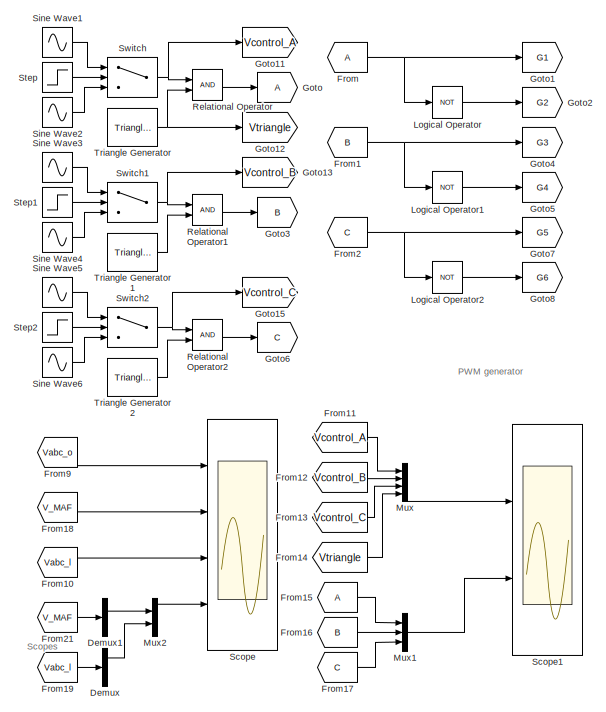
[diagram: root canvas - part 1/2, right side, full height]
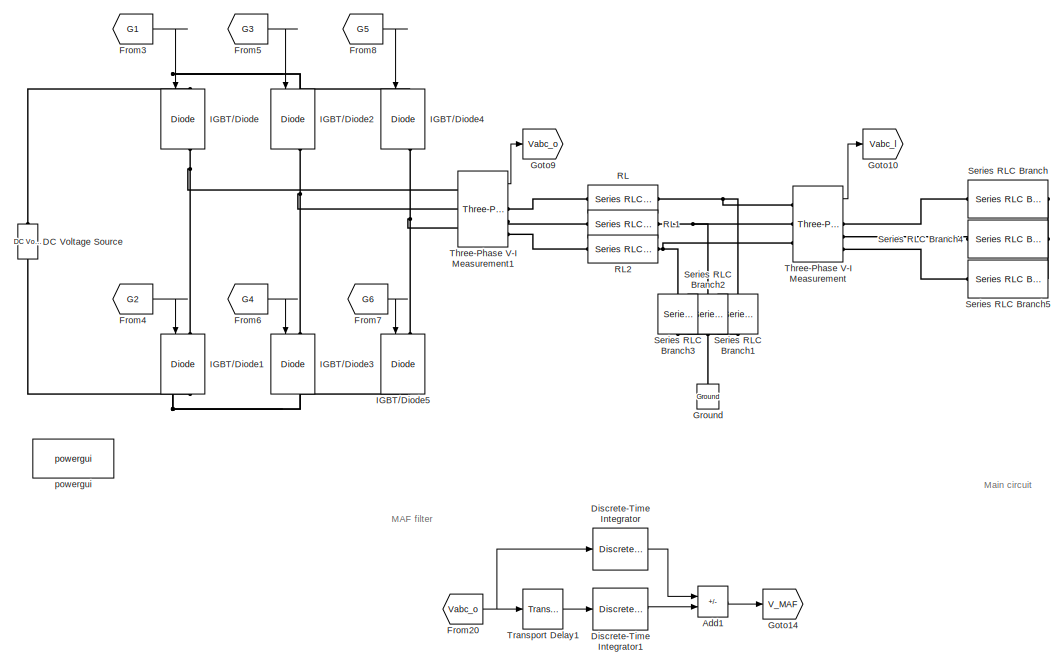
[diagram: root canvas - part 2/2, left side, full height]
MODEL slx_7b31f7d3c5cb
KIND model
CONFIG AbsTol = auto
CONFIG EnableMultiTasking = off
CONFIG FixedStep = Ts
CONFIG InitFcn = Ts = 5e-6;\nn = 2;\nTw = (n*pi)/(2*pi*60*33);
CONFIG MaxStep = auto
CONFIG MinStep = auto
CONFIG RelTol = 1e-3
CONFIG SampleTimeConstraint = Unconstrained
CONFIG SolverName = ode3
CONFIG StartTime = 0.0
CONFIG StopTime = 0.1
BLOCK [Sum] Add1
  IconShape = rectangular
  Inputs = +-
  Ports = [2, 1]
BLOCK [Reference] DC Voltage Source  REF=spsDCVoltageSourceLib/DC Voltage Source
  NameLocation = right
  Ports = [0, 0, 0, 0, 0, 1, 1]
  SourceBlock = spsDCVoltageSourceLib/DC Voltage Source
  SourceProductBaseCode = PS
  SourceType = DC Voltage Source
BLOCK [Demux] Demux
  Outputs = 3
  Ports = [1, 3]
BLOCK [Demux] Demux1
  Outputs = 3
  Ports = [1, 3]
BLOCK [DiscreteIntegrator] Discrete-Time Integrator
  ICPrevOutput = DiscIntNeverNeededParam
  ICPrevScaledInput = DiscIntNeverNeededParam
  InitialConditionSetting = Auto
  Ports = [1, 1]
  SampleTime = Ts
  gainval = 1/Tw
BLOCK [DiscreteIntegrator] Discrete-Time Integrator1
  ICPrevOutput = DiscIntNeverNeededParam
  ICPrevScaledInput = DiscIntNeverNeededParam
  InitialConditionSetting = Auto
  Ports = [1, 1]
  SampleTime = Ts
  gainval = 1/Tw
BLOCK [From] From
  TagVisibility = global
BLOCK [From] From1
  GotoTag = B
  TagVisibility = global
BLOCK [From] From10
  GotoTag = Vabc_l
  TagVisibility = global
BLOCK [From] From11
  GotoTag = Vcontrol_A
  TagVisibility = global
BLOCK [From] From12
  GotoTag = Vcontrol_B
  TagVisibility = global
BLOCK [From] From13
  GotoTag = Vcontrol_C
  TagVisibility = global
BLOCK [From] From14
  GotoTag = Vtriangle
  TagVisibility = global
BLOCK [From] From15
  TagVisibility = global
BLOCK [From] From16
  GotoTag = B
  TagVisibility = global
BLOCK [From] From17
  GotoTag = C
  TagVisibility = global
BLOCK [From] From18
  GotoTag = V_MAF
  TagVisibility = global
BLOCK [From] From19
  GotoTag = Vabc_l
  TagVisibility = global
BLOCK [From] From2
  GotoTag = C
  TagVisibility = global
BLOCK [From] From20
  GotoTag = Vabc_o
  TagVisibility = global
BLOCK [From] From21
  GotoTag = V_MAF
  TagVisibility = global
BLOCK [From] From3
  GotoTag = G1
  TagVisibility = global
BLOCK [From] From4
  GotoTag = G2
  TagVisibility = global
BLOCK [From] From5
  GotoTag = G3
  TagVisibility = global
BLOCK [From] From6
  GotoTag = G4
  TagVisibility = global
BLOCK [From] From7
  GotoTag = G6
  TagVisibility = global
BLOCK [From] From8
  GotoTag = G5
  TagVisibility = global
BLOCK [From] From9
  GotoTag = Vabc_o
  TagVisibility = global
BLOCK [Goto] Goto
  TagVisibility = global
BLOCK [Goto] Goto1
  GotoTag = G1
  TagVisibility = global
BLOCK [Goto] Goto10
  GotoTag = Vabc_l
  TagVisibility = global
BLOCK [Goto] Goto11
  GotoTag = Vcontrol_A
  TagVisibility = global
BLOCK [Goto] Goto12
  GotoTag = Vtriangle
  TagVisibility = global
BLOCK [Goto] Goto13
  GotoTag = Vcontrol_B
  TagVisibility = global
BLOCK [Goto] Goto14
  GotoTag = V_MAF
  TagVisibility = global
BLOCK [Goto] Goto15
  GotoTag = Vcontrol_C
  TagVisibility = global
BLOCK [Goto] Goto2
  GotoTag = G2
  TagVisibility = global
BLOCK [Goto] Goto3
  GotoTag = B
  TagVisibility = global
BLOCK [Goto] Goto4
  GotoTag = G3
  TagVisibility = global
BLOCK [Goto] Goto5
  GotoTag = G4
  TagVisibility = global
BLOCK [Goto] Goto6
  GotoTag = C
  TagVisibility = global
BLOCK [Goto] Goto7
  GotoTag = G5
  TagVisibility = global
BLOCK [Goto] Goto8
  GotoTag = G6
  TagVisibility = global
BLOCK [Goto] Goto9
  GotoTag = Vabc_o
  TagVisibility = global
BLOCK [Reference] Ground  REF=spsGroundLib/Ground
  NameLocation = right
  Ports = [0, 0, 0, 0, 0, 1]
  SourceBlock = spsGroundLib/Ground
  SourceProductBaseCode = PS
  SourceType = Ground
BLOCK [Reference] IGBT//Diode  REF=spsIGBTDiodeLib/IGBT//Diode
  NameLocation = left
  Ports = [1, 1, 0, 0, 0, 1, 1]
  SourceBlock = spsIGBTDiodeLib/IGBT//Diode
  SourceProductBaseCode = PS
  SourceType = IGBT/Diode
BLOCK [Reference] IGBT//Diode1  REF=spsIGBTDiodeLib/IGBT//Diode
  NameLocation = left
  Ports = [1, 1, 0, 0, 0, 1, 1]
  SourceBlock = spsIGBTDiodeLib/IGBT//Diode
  SourceProductBaseCode = PS
  SourceType = IGBT/Diode
BLOCK [Reference] IGBT//Diode2  REF=spsIGBTDiodeLib/IGBT//Diode
  NameLocation = left
  Ports = [1, 1, 0, 0, 0, 1, 1]
  SourceBlock = spsIGBTDiodeLib/IGBT//Diode
  SourceProductBaseCode = PS
  SourceType = IGBT/Diode
BLOCK [Reference] IGBT//Diode3  REF=spsIGBTDiodeLib/IGBT//Diode
  NameLocation = left
  Ports = [1, 1, 0, 0, 0, 1, 1]
  SourceBlock = spsIGBTDiodeLib/IGBT//Diode
  SourceProductBaseCode = PS
  SourceType = IGBT/Diode
BLOCK [Reference] IGBT//Diode4  REF=spsIGBTDiodeLib/IGBT//Diode
  NameLocation = left
  Ports = [1, 1, 0, 0, 0, 1, 1]
  SourceBlock = spsIGBTDiodeLib/IGBT//Diode
  SourceProductBaseCode = PS
  SourceType = IGBT/Diode
BLOCK [Reference] IGBT//Diode5  REF=spsIGBTDiodeLib/IGBT//Diode
  NameLocation = left
  Ports = [1, 1, 0, 0, 0, 1, 1]
  SourceBlock = spsIGBTDiodeLib/IGBT//Diode
  SourceProductBaseCode = PS
  SourceType = IGBT/Diode
BLOCK [Logic] Logical Operator
  AllPortsSameDT = off
  Operator = NOT
  OutDataTypeStr = boolean
  Ports = [1, 1]
BLOCK [Logic] Logical Operator1
  AllPortsSameDT = off
  Operator = NOT
  OutDataTypeStr = boolean
  Ports = [1, 1]
BLOCK [Logic] Logical Operator2
  AllPortsSameDT = off
  Operator = NOT
  OutDataTypeStr = boolean
  Ports = [1, 1]
BLOCK [Mux] Mux
  DisplayOption = bar
  Ports = [4, 1]
BLOCK [Mux] Mux1
  DisplayOption = bar
  Inputs = 3
  Ports = [3, 1]
BLOCK [Mux] Mux2
  DisplayOption = bar
  Inputs = 2
  Ports = [2, 1]
BLOCK [Reference] RL  REF=spsSeriesRLCBranchLib/Series RLC Branch
  Ports = [0, 0, 0, 0, 0, 1, 1]
  SourceBlock = spsSeriesRLCBranchLib/Series RLC Branch
  SourceProductBaseCode = PS
  SourceType = Series RLC Branch
BLOCK [Reference] RL1  REF=spsSeriesRLCBranchLib/Series RLC Branch
  Ports = [0, 0, 0, 0, 0, 1, 1]
  SourceBlock = spsSeriesRLCBranchLib/Series RLC Branch
  SourceProductBaseCode = PS
  SourceType = Series RLC Branch
BLOCK [Reference] RL2  REF=spsSeriesRLCBranchLib/Series RLC Branch
  Ports = [0, 0, 0, 0, 0, 1, 1]
  SourceBlock = spsSeriesRLCBranchLib/Series RLC Branch
  SourceProductBaseCode = PS
  SourceType = Series RLC Branch
BLOCK [RelationalOperator] Relational Operator
  InputSameDT = off
  OutDataTypeStr = boolean
  Ports = [2, 1]
BLOCK [RelationalOperator] Relational Operator1
  InputSameDT = off
  OutDataTypeStr = boolean
  Ports = [2, 1]
BLOCK [RelationalOperator] Relational Operator2
  InputSameDT = off
  OutDataTypeStr = boolean
  Ports = [2, 1]
BLOCK [Scope] Scope
  Floating = off
  NumInputPorts = 4
  Ports = [4]
  ScopeSpecificationString = Simulink.scopes.TimeScopeBlockCfg('CurrentConfiguration', extmgr.ConfigurationSet(extmgr.Configuration('Core','General UI',true),extmgr.Configuration('Core','Source UI',true),extmgr.Configuration('Sources','WiredSimulink',true,'DataLogging',true,'DataLoggingSaveFormat','StructureWithTime','DataLoggingVariableName','Vo_abc'),extmgr.Configuration('Visuals','Time Domain',true,'SerializedDisplays',{st...<+4908ch>
BLOCK [Scope] Scope1
  Floating = off
  NumInputPorts = 2
  Ports = [2]
  ScopeSpecificationString = Simulink.scopes.TimeScopeBlockCfg('CurrentConfiguration', extmgr.ConfigurationSet(extmgr.Configuration('Core','General UI',true),extmgr.Configuration('Core','Source UI',true),extmgr.Configuration('Sources','WiredSimulink',true,'DataLoggingVariableName','ScopeData1'),extmgr.Configuration('Visuals','Time Domain',true,'SerializedDisplays',{struct('MinYLimReal','-1.25','MaxYLimReal','1.25','YLabelReal...<+2924ch>
BLOCK [Reference] Series RLC Branch  REF=spsSeriesRLCBranchLib/Series RLC Branch
  Ports = [0, 0, 0, 0, 0, 1, 1]
  SourceBlock = spsSeriesRLCBranchLib/Series RLC Branch
  SourceProductBaseCode = PS
  SourceType = Series RLC Branch
BLOCK [Reference] Series RLC Branch1  REF=spsSeriesRLCBranchLib/Series RLC Branch
  NameLocation = left
  Ports = [0, 0, 0, 0, 0, 1, 1]
  SourceBlock = spsSeriesRLCBranchLib/Series RLC Branch
  SourceProductBaseCode = PS
  SourceType = Series RLC Branch
BLOCK [Reference] Series RLC Branch2  REF=spsSeriesRLCBranchLib/Series RLC Branch
  NameLocation = left
  Ports = [0, 0, 0, 0, 0, 1, 1]
  SourceBlock = spsSeriesRLCBranchLib/Series RLC Branch
  SourceProductBaseCode = PS
  SourceType = Series RLC Branch
BLOCK [Reference] Series RLC Branch3  REF=spsSeriesRLCBranchLib/Series RLC Branch
  NameLocation = left
  Ports = [0, 0, 0, 0, 0, 1, 1]
  SourceBlock = spsSeriesRLCBranchLib/Series RLC Branch
  SourceProductBaseCode = PS
  SourceType = Series RLC Branch
BLOCK [Reference] Series RLC Branch4  REF=spsSeriesRLCBranchLib/Series RLC Branch
  Ports = [0, 0, 0, 0, 0, 1, 1]
  SourceBlock = spsSeriesRLCBranchLib/Series RLC Branch
  SourceProductBaseCode = PS
  SourceType = Series RLC Branch
BLOCK [Reference] Series RLC Branch5  REF=spsSeriesRLCBranchLib/Series RLC Branch
  Ports = [0, 0, 0, 0, 0, 1, 1]
  SourceBlock = spsSeriesRLCBranchLib/Series RLC Branch
  SourceProductBaseCode = PS
  SourceType = Series RLC Branch
BLOCK [Sin] Sine Wave1
  Amplitude = 0.8
  Frequency = 2*pi*60
  Ports = [0, 1]
  SampleTime = Ts
BLOCK [Sin] Sine Wave2
  Frequency = 2*pi*60
  Ports = [0, 1]
  SampleTime = Ts
BLOCK [Sin] Sine Wave3
  Amplitude = 0.8
  Frequency = 2*pi*60
  Phase = -2*pi/3
  Ports = [0, 1]
  SampleTime = Ts
BLOCK [Sin] Sine Wave4
  Frequency = 2*pi*60
  Phase = -2*pi/3
  Ports = [0, 1]
  SampleTime = Ts
BLOCK [Sin] Sine Wave5
  Amplitude = 0.8
  Frequency = 2*pi*60
  Phase = 2*pi/3
  Ports = [0, 1]
  SampleTime = Ts
BLOCK [Sin] Sine Wave6
  Frequency = 2*pi*60
  Phase = 2*pi/3
  Ports = [0, 1]
  SampleTime = Ts
BLOCK [Step] Step
  SampleTime = Ts
  Time = 0.05
BLOCK [Step] Step1
  SampleTime = Ts
  Time = 0.05
BLOCK [Step] Step2
  SampleTime = Ts
  Time = 0.05
BLOCK [Switch] Switch
  Criteria = u2 > Threshold
  InputSameDT = off
  SaturateOnIntegerOverflow = off
BLOCK [Switch] Switch1
  Criteria = u2 > Threshold
  InputSameDT = off
  SaturateOnIntegerOverflow = off
BLOCK [Switch] Switch2
  Criteria = u2 > Threshold
  InputSameDT = off
  SaturateOnIntegerOverflow = off
BLOCK [Reference] Three-Phase V-I Measurement  REF=spsThreePhaseVIMeasurementLib/Three-Phase
V-I Measurement
  Ports = [0, 2, 0, 0, 0, 3, 3]
  SourceBlock = spsThreePhaseVIMeasurementLib/Three-Phase\nV-I Measurement
  SourceProductBaseCode = PS
  SourceType = Three-Phase VI Measurement
BLOCK [Reference] Three-Phase V-I Measurement1  REF=spsThreePhaseVIMeasurementLib/Three-Phase
V-I Measurement
  Ports = [0, 2, 0, 0, 0, 3, 3]
  SourceBlock = spsThreePhaseVIMeasurementLib/Three-Phase\nV-I Measurement
  SourceProductBaseCode = PS
  SourceType = Three-Phase VI Measurement
BLOCK [TransportDelay] Transport Delay1
  DelayTime = Tw
  PadeOrder = 1
  Ports = [1, 1]
BLOCK [Reference] Triangle Generator  REF=spsTriangleGeneratorLib/Triangle
Generator
  Ports = [0, 1]
  SourceBlock = spsTriangleGeneratorLib/Triangle\nGenerator
  SourceProductBaseCode = PS
  SourceType = Triangle Generator
BLOCK [Reference] Triangle Generator1  REF=spsTriangleGeneratorLib/Triangle
Generator
  Ports = [0, 1]
  SourceBlock = spsTriangleGeneratorLib/Triangle\nGenerator
  SourceProductBaseCode = PS
  SourceType = Triangle Generator
BLOCK [Reference] Triangle Generator2  REF=spsTriangleGeneratorLib/Triangle
Generator
  Ports = [0, 1]
  SourceBlock = spsTriangleGeneratorLib/Triangle\nGenerator
  SourceProductBaseCode = PS
  SourceType = Triangle Generator
BLOCK [Reference] powergui  REF=spspowerguiLib/powergui
  Ports = []
  Priority = 1
  SourceBlock = spspowerguiLib/powergui
  SourceProductBaseCode = PS
  SourceType = PSB option menu block
ANNOTATION (root): MAF filter
ANNOTATION (root): Main circuit
ANNOTATION (root): PWM generator
ANNOTATION (root): Scopes
LINE Add1:1 -> Goto14:1
LINE Demux1:1 -> Mux2:1
LINE Demux:1 -> Mux2:2
LINE Discrete-Time Integrator1:1 -> Add1:2
LINE Discrete-Time Integrator:1 -> Add1:1
LINE From10:1 -> Scope:3
LINE From11:1 -> Mux:1
LINE From12:1 -> Mux:2
LINE From13:1 -> Mux:3
LINE From14:1 -> Mux:4
LINE From15:1 -> Mux1:1
LINE From16:1 -> Mux1:2
LINE From17:1 -> Mux1:3
LINE From18:1 -> Scope:2
LINE From19:1 -> Demux:1
NET From1:1 -> Goto4:1, Logical Operator1:1
NET From20:1 -> Discrete-Time Integrator:1, Transport Delay1:1
LINE From21:1 -> Demux1:1
NET From2:1 -> Goto7:1, Logical Operator2:1
LINE From3:1 -> IGBT//Diode:1
LINE From4:1 -> IGBT//Diode1:1
LINE From5:1 -> IGBT//Diode2:1
LINE From6:1 -> IGBT//Diode3:1
LINE From7:1 -> IGBT//Diode5:1
LINE From8:1 -> IGBT//Diode4:1
LINE From9:1 -> Scope:1
NET From:1 -> Goto1:1, Logical Operator:1
LINE Logical Operator1:1 -> Goto5:1
LINE Logical Operator2:1 -> Goto8:1
LINE Logical Operator:1 -> Goto2:1
LINE Mux1:1 -> Scope1:2
LINE Mux2:1 -> Scope:4
LINE Mux:1 -> Scope1:1
LINE Relational Operator1:1 -> Goto3:1
LINE Relational Operator2:1 -> Goto6:1
LINE Relational Operator:1 -> Goto:1
LINE Sine Wave1:1 -> Switch:1
LINE Sine Wave2:1 -> Switch:3
LINE Sine Wave3:1 -> Switch1:1
LINE Sine Wave4:1 -> Switch1:3
LINE Sine Wave5:1 -> Switch2:1
LINE Sine Wave6:1 -> Switch2:3
LINE Step1:1 -> Switch1:2
LINE Step2:1 -> Switch2:2
LINE Step:1 -> Switch:2
NET Switch1:1 -> Goto13:1, Relational Operator1:1
NET Switch2:1 -> Goto15:1, Relational Operator2:1
NET Switch:1 -> Goto11:1, Relational Operator:1
LINE Three-Phase V-I Measurement1:1 -> Goto9:1
LINE Three-Phase V-I Measurement:1 -> Goto10:1
LINE Transport Delay1:1 -> Discrete-Time Integrator1:1
LINE Triangle Generator1:1 -> Relational Operator1:2
LINE Triangle Generator2:1 -> Relational Operator2:2
NET Triangle Generator:1 -> Goto12:1, Relational Operator:2
PNET net1: DC Voltage Source:LConn1 -- IGBT//Diode1:RConn1 -- IGBT//Diode3:RConn1 -- IGBT//Diode5:RConn1
PNET net2: DC Voltage Source:RConn1 -- IGBT//Diode2:LConn1 -- IGBT//Diode4:LConn1 -- IGBT//Diode:LConn1
PNET net3: Ground:LConn1 -- Series RLC Branch1:RConn1 -- Series RLC Branch2:RConn1 -- Series RLC Branch3:RConn1
PNET net4: IGBT//Diode1:LConn1 -- IGBT//Diode:RConn1 -- Three-Phase V-I Measurement1:LConn1
PNET net5: IGBT//Diode2:RConn1 -- IGBT//Diode3:LConn1 -- Three-Phase V-I Measurement1:LConn2
PNET net6: IGBT//Diode4:RConn1 -- IGBT//Diode5:LConn1 -- Three-Phase V-I Measurement1:LConn3
PLINE RL1:LConn1 -- Three-Phase V-I Measurement1:RConn2
PNET net7: RL1:RConn1 -- Series RLC Branch2:LConn1 -- Three-Phase V-I Measurement:LConn2
PLINE RL2:LConn1 -- Three-Phase V-I Measurement1:RConn3
PNET net8: RL2:RConn1 -- Series RLC Branch3:LConn1 -- Three-Phase V-I Measurement:LConn3
PLINE RL:LConn1 -- Three-Phase V-I Measurement1:RConn1
PNET net9: RL:RConn1 -- Series RLC Branch1:LConn1 -- Three-Phase V-I Measurement:LConn1
PLINE Series RLC Branch4:LConn1 -- Three-Phase V-I Measurement:RConn2
PNET net10: Series RLC Branch4:RConn1 -- Series RLC Branch5:RConn1 -- Series RLC Branch:RConn1
PLINE Series RLC Branch5:LConn1 -- Three-Phase V-I Measurement:RConn3
PLINE Series RLC Branch:LConn1 -- Three-Phase V-I Measurement:RConn1
note: NET lines group one-source signal fan-out (src -> all destinations, sorted); 1:1 wires keep LINE; PNET lines group multi-terminal physical nets as a canonical sorted terminal list (undirected conserving connections); 2-terminal nets keep the pairwise PLINE form
